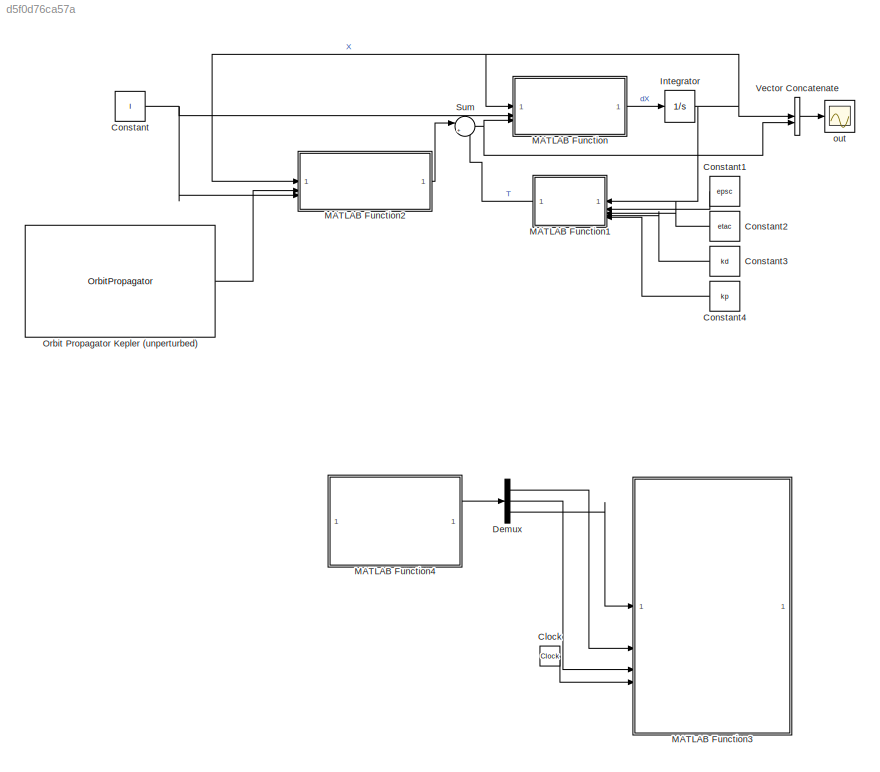
MODEL slx_d5f0d76ca57a
KIND model
CONFIG AbsTol = auto
CONFIG EnableMultiTasking = off
CONFIG FixedStep = auto
CONFIG MaxStep = auto
CONFIG MinStep = auto
CONFIG RelTol = 1e-3
CONFIG SampleTimeConstraint = Unconstrained
CONFIG SolverName = VariableStepAuto
CONFIG StartTime = 0.0
CONFIG StopTime = 10.0
BLOCK [Clock] Clock
  Commented = on
BLOCK [Constant] Constant
  Value = I
BLOCK [Constant] Constant1
  Commented = on
  Value = epsc
BLOCK [Constant] Constant2
  Commented = on
  NameLocation = top
  Value = etac
BLOCK [Constant] Constant3
  Commented = on
  NameLocation = top
  Value = kd
BLOCK [Constant] Constant4
  Commented = on
  NameLocation = top
  Value = kp
BLOCK [Demux] Demux
  Commented = on
  Outputs = 3
BLOCK [Integrator] Integrator
  InitialCondition = X0
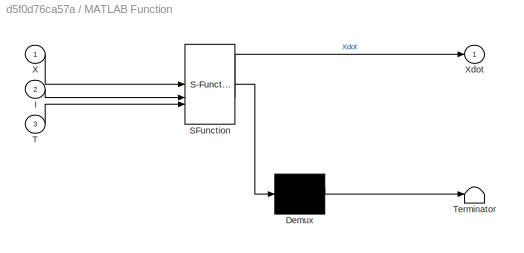
BLOCK [SubSystem] MATLAB Function
  ErrorFcn = Stateflow.Translate.translate
  PermitHierarchicalResolution = ExplicitOnly
  SFBlockType = MATLAB Function
  TreatAsAtomicUnit = on
BLOCK [Demux] MATLAB Function/ Demux 
  Outputs = 1
BLOCK [S-Function] MATLAB Function/ SFunction 
  EnableBusSupport = on
  FunctionName = sf_sfun
  PortCounts = [3 2]
  SFcnIsStateOwnerBlock = off
  SFunctionDeploymentMode = off
  Tag = Stateflow S-Function 2
BLOCK [Terminator] MATLAB Function/ Terminator 
BLOCK [Inport] MATLAB Function/I
  Port = 2
BLOCK [Inport] MATLAB Function/T
  Port = 3
BLOCK [Inport] MATLAB Function/X
BLOCK [Outport] MATLAB Function/Xdot
  VectorParamsAs1DForOutWhenUnconnected = off
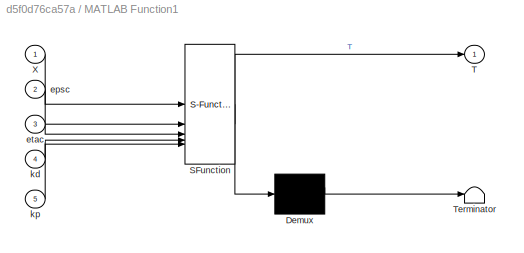
BLOCK [SubSystem] MATLAB Function1
  Commented = on
  ErrorFcn = Stateflow.Translate.translate
  PermitHierarchicalResolution = ExplicitOnly
  SFBlockType = MATLAB Function
  TreatAsAtomicUnit = on
BLOCK [Demux] MATLAB Function1/ Demux 
  Outputs = 1
BLOCK [S-Function] MATLAB Function1/ SFunction 
  EnableBusSupport = on
  FunctionName = sf_sfun
  PortCounts = [5 2]
  SFcnIsStateOwnerBlock = off
  SFunctionDeploymentMode = off
  Tag = Stateflow S-Function 1
BLOCK [Terminator] MATLAB Function1/ Terminator 
BLOCK [Outport] MATLAB Function1/T
BLOCK [Inport] MATLAB Function1/X
BLOCK [Inport] MATLAB Function1/epsc
  Port = 2
BLOCK [Inport] MATLAB Function1/etac
  Port = 3
BLOCK [Inport] MATLAB Function1/kd
  Port = 4
BLOCK [Inport] MATLAB Function1/kp
  Port = 5
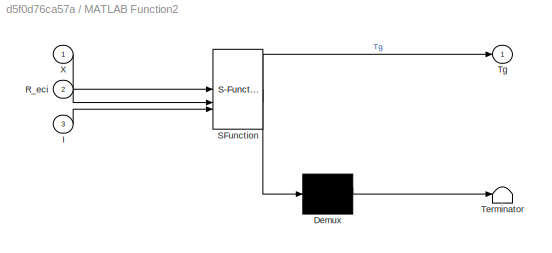
BLOCK [SubSystem] MATLAB Function2
  ErrorFcn = Stateflow.Translate.translate
  LibrarySourceBlock = simulink/User-Defined\nFunctions/MATLAB Function
  PermitHierarchicalResolution = ExplicitOnly
  SFBlockType = MATLAB Function
  TreatAsAtomicUnit = on
BLOCK [Demux] MATLAB Function2/ Demux 
  Outputs = 1
BLOCK [S-Function] MATLAB Function2/ SFunction 
  EnableBusSupport = on
  FunctionName = sf_sfun
  PortCounts = [3 2]
  SFcnIsStateOwnerBlock = off
  SFunctionDeploymentMode = off
  Tag = Stateflow S-Function 3
BLOCK [Terminator] MATLAB Function2/ Terminator 
BLOCK [Inport] MATLAB Function2/I
  Port = 3
BLOCK [Inport] MATLAB Function2/R_eci
  Port = 2
BLOCK [Outport] MATLAB Function2/Tg
BLOCK [Inport] MATLAB Function2/X
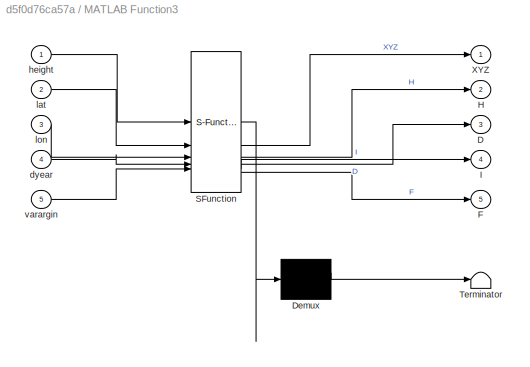
BLOCK [SubSystem] MATLAB Function3
  Commented = on
  ErrorFcn = Stateflow.Translate.translate
  LibrarySourceBlock = simulink/User-Defined\nFunctions/MATLAB Function
  PermitHierarchicalResolution = ExplicitOnly
  SFBlockType = MATLAB Function
  TreatAsAtomicUnit = on
BLOCK [Demux] MATLAB Function3/ Demux 
  Outputs = 1
BLOCK [S-Function] MATLAB Function3/ SFunction 
  EnableBusSupport = on
  FunctionName = sf_sfun
  PortCounts = [5 6]
  SFcnIsStateOwnerBlock = off
  SFunctionDeploymentMode = off
  Tag = Stateflow S-Function 4
BLOCK [Terminator] MATLAB Function3/ Terminator 
BLOCK [Outport] MATLAB Function3/D
  Port = 3
BLOCK [Outport] MATLAB Function3/F
  Port = 5
BLOCK [Outport] MATLAB Function3/H
  Port = 2
BLOCK [Outport] MATLAB Function3/I
  Port = 4
BLOCK [Outport] MATLAB Function3/XYZ
BLOCK [Inport] MATLAB Function3/dyear
  Port = 4
BLOCK [Inport] MATLAB Function3/height
BLOCK [Inport] MATLAB Function3/lat
  Port = 2
BLOCK [Inport] MATLAB Function3/lon
  Port = 3
BLOCK [Inport] MATLAB Function3/varargin
  Port = 5
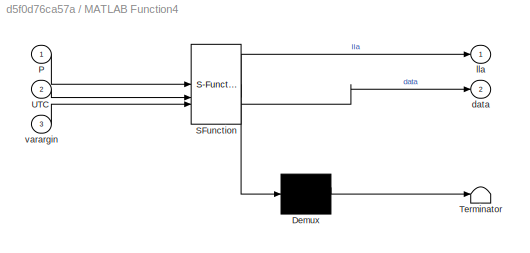
BLOCK [SubSystem] MATLAB Function4
  Commented = on
  ErrorFcn = Stateflow.Translate.translate
  LibrarySourceBlock = simulink/User-Defined\nFunctions/MATLAB Function
  PermitHierarchicalResolution = ExplicitOnly
  SFBlockType = MATLAB Function
  TreatAsAtomicUnit = on
BLOCK [Demux] MATLAB Function4/ Demux 
  Outputs = 1
BLOCK [S-Function] MATLAB Function4/ SFunction 
  EnableBusSupport = on
  FunctionName = sf_sfun
  PortCounts = [3 3]
  SFcnIsStateOwnerBlock = off
  SFunctionDeploymentMode = off
  Tag = Stateflow S-Function 5
BLOCK [Terminator] MATLAB Function4/ Terminator 
BLOCK [Inport] MATLAB Function4/P
BLOCK [Inport] MATLAB Function4/UTC
  Port = 2
BLOCK [Outport] MATLAB Function4/data
  Port = 2
BLOCK [Outport] MATLAB Function4/lla
BLOCK [Inport] MATLAB Function4/varargin
  Port = 3
BLOCK [OrbitPropagator] Orbit Propagator Kepler (unperturbed)
  customJ2 = 1.0826269e-03
  customMu = 4.305e13
  customOmega = 4.06125949e-3
  customR = 3396200
  fixedPosition = [-4142689.0 -2676864.7 -4669861.6]
  fixedVelocity = [1452.7 -6720.7 2568.1]
  inertialPosition = [3649700.0 3308200.0 -4676600.0]
  inertialVelocity = [-2750.8 6666.4 2573.4]
  semiMajorAxis = 7136.6
  startDate = juliandate(2023, 6, 21, 8, 0, 0)
  units = Metric (km/s)
BLOCK [Sum] Sum
  Inputs = |++
BLOCK [Concatenate] Vector Concatenate
BLOCK [Scope] out
  Floating = off
  NumInputPorts = 1
  ScopeSpecificationString = Simulink.scopes.TimeScopeBlockCfg('CurrentConfiguration', extmgr.ConfigurationSet(extmgr.Configuration('Core','General UI',true),extmgr.Configuration('Core','Source UI',true),extmgr.Configuration('Sources','WiredSimulink',true,'DataLogging',true),extmgr.Configuration('Visuals','Time Domain',true,'SerializedDisplays',{struct('MinYLimReal','-7031.07586','MaxYLimReal','782.97598','YLabelReal','','Min...<+1442ch>
LINE Clock:1 -> MATLAB Function3:4
LINE Constant1:1 -> MATLAB Function1:2
LINE Constant2:1 -> MATLAB Function1:3
LINE Constant3:1 -> MATLAB Function1:4
LINE Constant4:1 -> MATLAB Function1:5
NET Constant:1 -> MATLAB Function2:3, MATLAB Function:2
LINE Demux:1 -> MATLAB Function3:2
LINE Demux:2 -> MATLAB Function3:3
LINE Demux:3 -> MATLAB Function3:1
NET Integrator:1 -> MATLAB Function1:1, MATLAB Function2:1, MATLAB Function:1, Vector Concatenate:1
LINE MATLAB Function1:1 -> Sum:2
LINE MATLAB Function2:1 -> Sum:1
LINE MATLAB Function4:1 -> Demux:1
LINE MATLAB Function:1 -> Integrator:1
LINE Orbit Propagator Kepler (unperturbed):1 -> MATLAB Function2:2
NET Sum:1 -> MATLAB Function:3, Vector Concatenate:2
LINE Vector Concatenate:1 -> out:1
note: NET lines group one-source signal fan-out (src -> all destinations, sorted); 1:1 wires keep LINE
CHART MATLAB Function1 states=1 transitions=1
  STATE_LABEL 'eML_blk_kernel()'
  STATE_LABEL 'SCRIPT:\nfunction T = Feedback(X,epsc,etac,kd,kp)\n\n% pass through for feedback function\n\nT = zeros(3,1);\nT = FEEDBACK_ODE(X,epsc,etac,kd,kp);\nend\n'
CHART MATLAB Function states=1 transitions=1
  STATE_LABEL 'eML_blk_kernel()'
  STATE_LABEL 'SCRIPT:\nfunction Xdot = EOM(X,I,T)\n% pass through function calls shared ODE (because this is the world we live in)\nXdot = zeros(10,1);\nXdot = EOM_ODE(0,X,I,T);\nend'
CHART MATLAB Function2 states=1 transitions=1
  STATE_LABEL 'eML_blk_kernel()'
  STATE_LABEL 'SCRIPT:\nfunction Tg = GravityGradient(X,R_eci,I)\neps = X(7:9);\neta = X(10);\n\nTg = gravgrad(eps,eta,R_eci,I); \n\nend\n'
CHART MATLAB Function3 states=1 transitions=1
  STATE_LABEL 'eML_blk_kernel()'
  STATE_LABEL 'SCRIPT:\nfunction [XYZ, H, D, I, F] = wrldmagm_fixed(height, lat, lon, dyear, varargin)\n\n[XYZ, H, D, I, F] = wrldmagm_fixed(height, lat, lon, dyear, varargin);\n\nend'
CHART MATLAB Function4 states=1 transitions=1
  STATE_LABEL 'eML_blk_kernel()'
  STATE_LABEL 'SCRIPT:\nfunction [lla,data] = eci2lla(P,UTC,varargin)\n\nlla = eci2lla(P,UTC,varargin);\n\nend\n'
CHART  states=0 transitions=0
CHART  states=0 transitions=0
CHART  states=0 transitions=0
CHART  states=0 transitions=0
CHART  states=0 transitions=0
